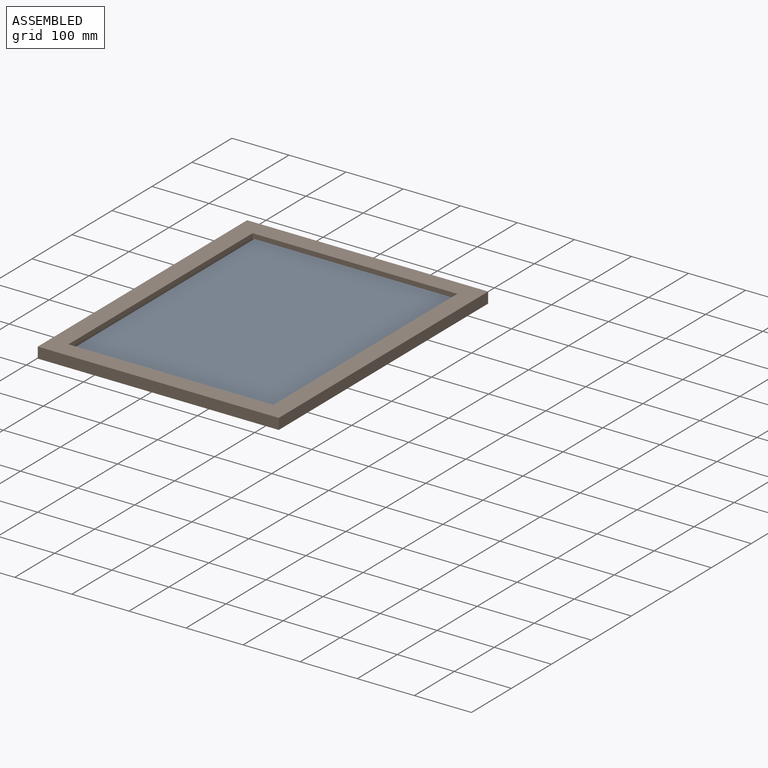
[diagram: assembled view]
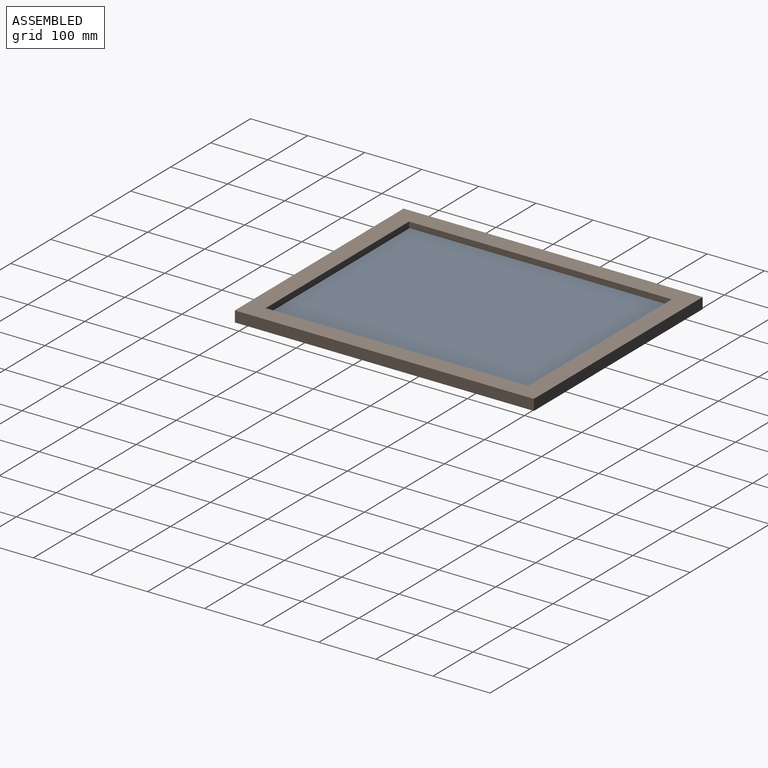
[diagram: assembled view, second angle]
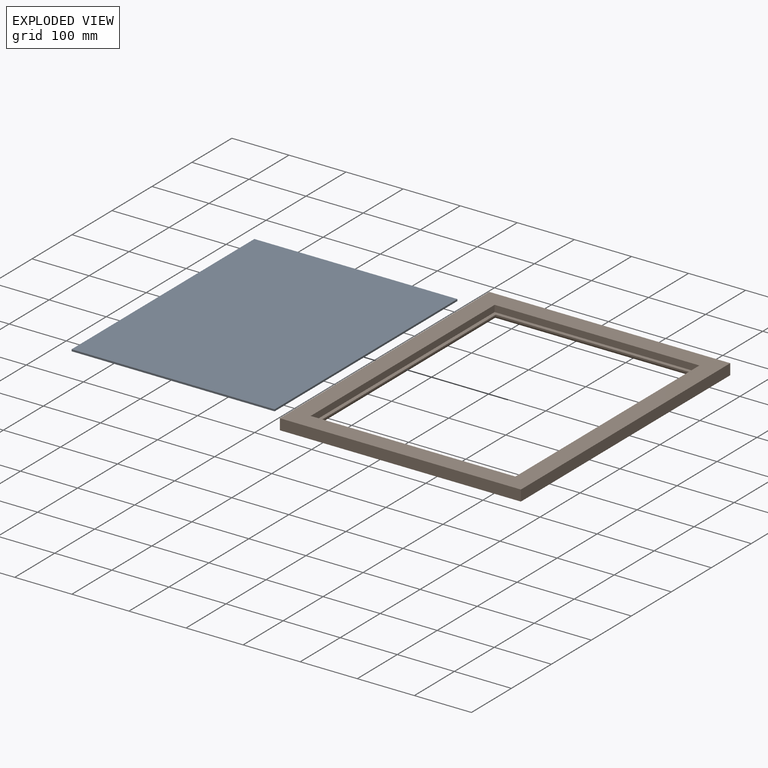
[diagram: exploded view]
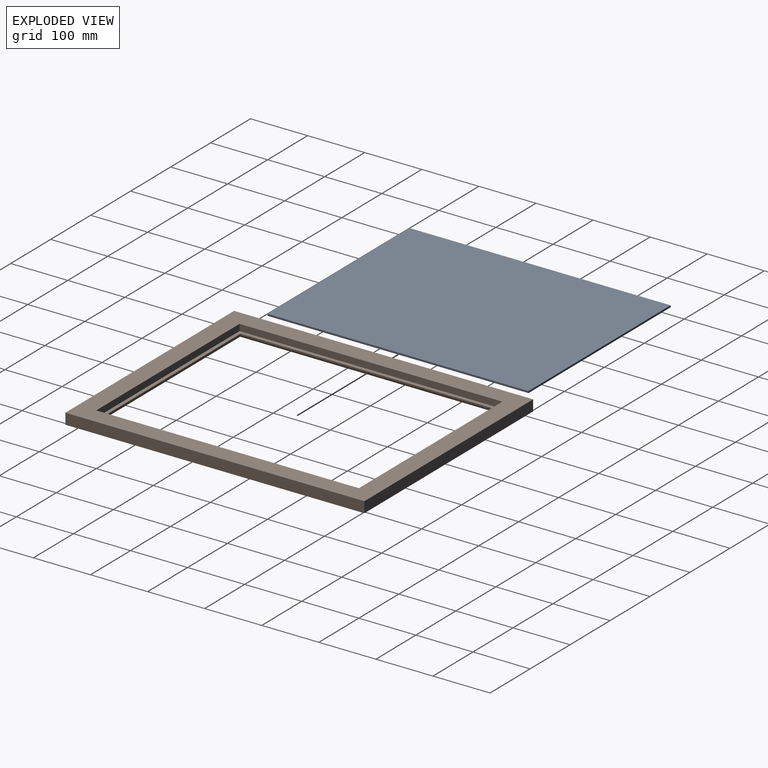
[diagram: exploded view, second angle]
ASSEMBLY  parts=2 mates=3
PART A: 6 faces, bbox 355.6x457.2x3.2 mm
  f0: plane 355.6x3.18mm, normal (0,1,0), area 1129mm2, adj f1,f3,f4,f5
  f1: plane 457.2x3.18mm, normal (-1,0,0), area 1451.6mm2, adj f0,f2,f4,f5
  f2: plane 355.6x3.18mm, normal (0,-1,0), area 1129mm2, adj f1,f3,f4,f5
  f3: plane 457.2x3.18mm, normal (1,0,0), area 1451.6mm2, adj f0,f2,f4,f5
  f4: plane 457.2x355.6mm, normal (0,0,1), area 162580.3mm2, adj f0,f1,f2,f3
  f5: plane 457.2x355.6mm, normal (0,0,-1), area 162580.3mm2, adj f0,f1,f2,f3
PART B: 19 faces, bbox 422.3x19.1x523.9 mm
  f0: plane 422.28x19.05mm, normal (0,0,1), area 8044.3mm2, adj f1,f7,f8,f9
  f1: plane 523.88x19.05mm, normal (-1,0,0), area 9979.8mm2, adj f0,f2,f8,f9
  f2: plane 422.28x19.05mm, normal (0,0,-1), area 8044.3mm2, adj f1,f7,f8,f9
  f3: plane 460.38x11.43mm, normal (1,0,0), area 5262.1mm2, adj f4,f6,f8,f14
  f4: plane 358.78x11.43mm, normal (0,0,-1), area 4100.8mm2, adj f3,f5,f8,f14
  f5: plane 460.38x11.43mm, normal (-1,0,0), area 5262.1mm2, adj f4,f6,f8,f14
  f6: plane 358.78x11.43mm, normal (0,0,1), area 4100.8mm2, adj f3,f5,f8,f14
  f7: plane 523.88x19.05mm, normal (1,0,0), area 9979.8mm2, adj f0,f2,f8,f9
  f8: plane 523.88x422.28mm, normal (0,-1,0), area 56048.3mm2, adj f0,f1,f2,f3,f4,f5,f6,f7
  f9: plane 523.88x422.28mm, normal (0,1,0), area 56048.3mm2, adj f0,f1,f2,f7,f15,f16,f17,f18
  f10: plane 447.68x1.27mm, normal (1,0,0), area 568.5mm2, adj f11,f13,f14,f16
  f11: plane 346.08x1.27mm, normal (0,0,-1), area 439.5mm2, adj f10,f12,f14,f15
  f12: plane 447.68x1.27mm, normal (-1,0,0), area 568.5mm2, adj f11,f13,f14,f17
  f13: plane 346.08x1.27mm, normal (0,0,1), area 439.5mm2, adj f10,f12,f14,f18
  f14: plane 460.38x358.78mm, normal (0,-1,0), area 10241.9mm2, adj f3,f4,f5,f6,f10,f11,f12,f13
  f15: cylinder r=6.35mm len=358.78mm, axis (1,0,0), area 3498mm2, adj f9,f11,f16,f17
  f16: cylinder r=6.35mm len=460.38mm, axis (0,0,1), area 4511.4mm2, adj f9,f10,f15,f18
  f17: cylinder r=6.35mm len=460.38mm, axis (0,0,-1), area 4511.4mm2, adj f9,f12,f15,f18
  f18: cylinder r=6.35mm len=358.78mm, axis (-1,0,0), area 3498mm2, adj f9,f13,f16,f17
PLACE A rot(axis=(0,0,-1),180deg) t=(296.43,82.56,-57.44)mm
PLACE B rot(axis=(-1,0,0),90deg) t=(314.7,42.78,-65.06)mm
MATE planar A.f1 <-> B.f5  axis (1,0,0) through (494.08,44.37,-55.85)mm
MATE planar A.f2 <-> B.f4  axis (0,1,0) through (316.28,272.97,-55.85)mm
MATE planar B.f14 <-> A.f5  axis (0,0,1) through (314.7,42.78,-57.44)mm
